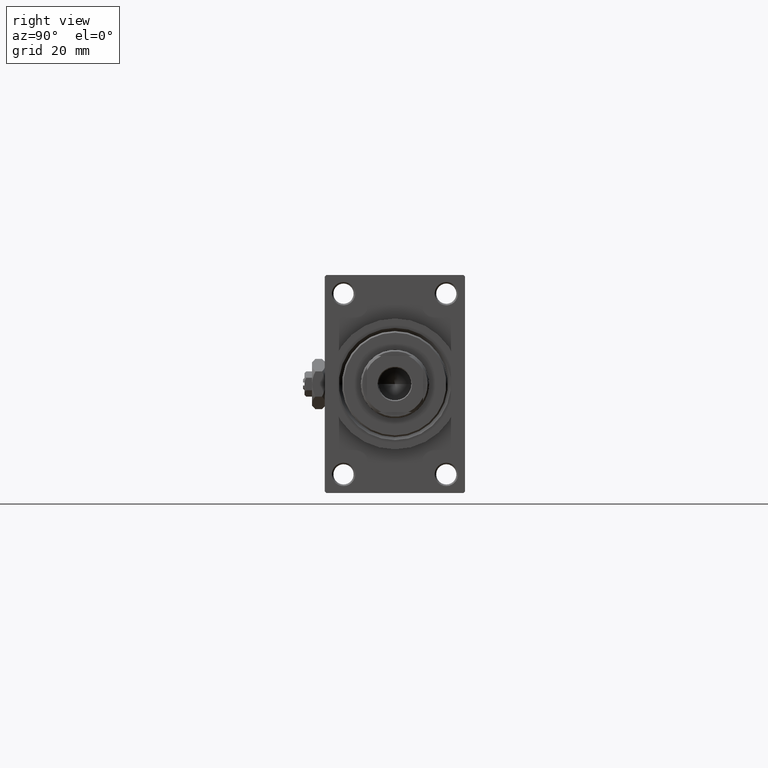
[diagram: clean part render]
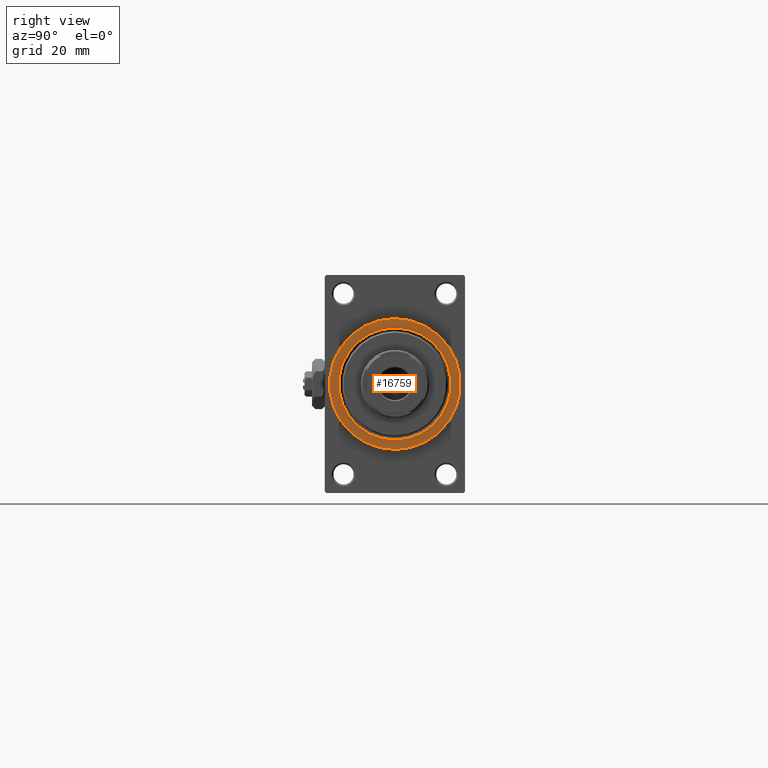
[diagram: same view with one face highlighted and labeled with its STEP entity id]
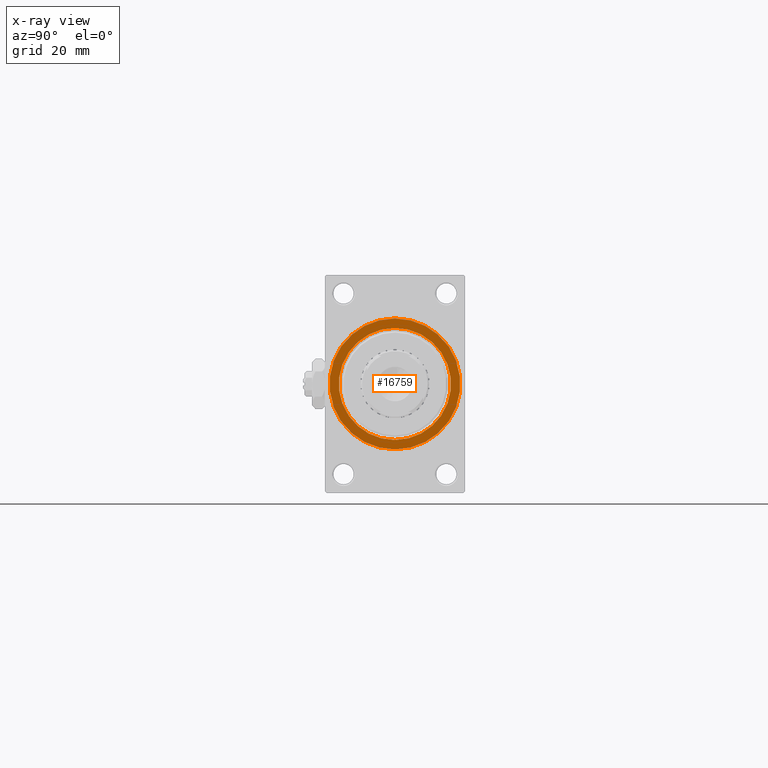
[diagram: x-ray of the same camera — body ghosted, the highlighted face saturated]
A machine part, right view. The second image highlights one B-rep face of the part: STEP entity #16759.
The next image is the same camera in x-ray: the body ghosted, the highlighted face saturated — about 0% of this face is hidden behind the body in this view.
In plain terms, the highlighted planar face has unit normal (1, 0, 0).
Its self-contained STEP definition (entity closure, byte-faithful):
#476 = DIRECTION ( 'NONE',  ( 1.000000000000000000, 0.000000000000000000, 0.000000000000000000 ) ) ;
#1683 = CIRCLE ( 'NONE', #34965, 21.00000000000000000 ) ;
#2450 = ORIENTED_EDGE ( 'NONE', *, *, #23136, .T. ) ;
#2705 = PLANE ( 'NONE',  #49121 ) ;
#3668 = EDGE_LOOP ( 'NONE', ( #2450, #24763 ) ) ;
#3820 = CARTESIAN_POINT ( 'NONE',  ( 183.0000000000000284, 0.000000000000000000, -18.00000000000007105 ) ) ;
#4643 = EDGE_LOOP ( 'NONE', ( #35079, #40848 ) ) ;
#4947 = CARTESIAN_POINT ( 'NONE',  ( 183.0000000000000284, 0.000000000000000000, 0.000000000000000000 ) ) ;
#5157 = VERTEX_POINT ( 'NONE', #3820 ) ;
#5343 = AXIS2_PLACEMENT_3D ( 'NONE', #11927, #476, #45943 ) ;
#9932 = CARTESIAN_POINT ( 'NONE',  ( 183.0000000000000284, 0.000000000000000000, 0.000000000000000000 ) ) ;
#10280 = EDGE_CURVE ( 'NONE', #37344, #5157, #40981, .T. ) ;
#11927 = CARTESIAN_POINT ( 'NONE',  ( 183.0000000000000284, 0.000000000000000000, 0.000000000000000000 ) ) ;
#12100 = EDGE_CURVE ( 'NONE', #33872, #17768, #13309, .T. ) ;
#13309 = CIRCLE ( 'NONE', #5343, 21.00000000000000000 ) ;
#16759 = ADVANCED_FACE ( 'NONE', ( #29260, #36483 ), #2705, .T. ) ;
#17768 = VERTEX_POINT ( 'NONE', #25236 ) ;
#19111 = AXIS2_PLACEMENT_3D ( 'NONE', #22154, #40789, #33566 ) ;
#19558 = CARTESIAN_POINT ( 'NONE',  ( 183.0000000000000284, 2.571758278209441661E-15, -21.00000000000000000 ) ) ;
#22070 = DIRECTION ( 'NONE',  ( 1.000000000000000000, 0.000000000000000000, 0.000000000000000000 ) ) ;
#22154 = CARTESIAN_POINT ( 'NONE',  ( 183.0000000000000284, 0.000000000000000000, 0.000000000000000000 ) ) ;
#22257 = CIRCLE ( 'NONE', #19111, 18.00000000000007105 ) ;
#23136 = EDGE_CURVE ( 'NONE', #17768, #33872, #1683, .T. ) ;
#24763 = ORIENTED_EDGE ( 'NONE', *, *, #12100, .T. ) ;
#25058 = DIRECTION ( 'NONE',  ( 0.000000000000000000, 0.000000000000000000, -1.000000000000000000 ) ) ;
#25066 = DIRECTION ( 'NONE',  ( 0.000000000000000000, 0.000000000000000000, -1.000000000000000000 ) ) ;
#25236 = CARTESIAN_POINT ( 'NONE',  ( 183.0000000000000284, 0.000000000000000000, 21.00000000000000000 ) ) ;
#25291 = DIRECTION ( 'NONE',  ( -1.000000000000000000, -0.000000000000000000, -0.000000000000000000 ) ) ;
#27339 = DIRECTION ( 'NONE',  ( 0.000000000000000000, 0.000000000000000000, -1.000000000000000000 ) ) ;
#29037 = CARTESIAN_POINT ( 'NONE',  ( 183.0000000000000284, 2.204364238465244894E-15, 18.00000000000007105 ) ) ;
#29260 = FACE_BOUND ( 'NONE', #4643, .T. ) ;
#31306 = CARTESIAN_POINT ( 'NONE',  ( 183.0000000000000284, 0.000000000000000000, 0.000000000000000000 ) ) ;
#31784 = DIRECTION ( 'NONE',  ( 1.000000000000000000, 0.000000000000000000, 0.000000000000000000 ) ) ;
#33025 = AXIS2_PLACEMENT_3D ( 'NONE', #4947, #25291, #25058 ) ;
#33566 = DIRECTION ( 'NONE',  ( 0.000000000000000000, 0.000000000000000000, -1.000000000000000000 ) ) ;
#33872 = VERTEX_POINT ( 'NONE', #19558 ) ;
#34965 = AXIS2_PLACEMENT_3D ( 'NONE', #31306, #31784, #27339 ) ;
#35079 = ORIENTED_EDGE ( 'NONE', *, *, #40276, .T. ) ;
#36483 = FACE_OUTER_BOUND ( 'NONE', #3668, .T. ) ;
#37344 = VERTEX_POINT ( 'NONE', #29037 ) ;
#40276 = EDGE_CURVE ( 'NONE', #5157, #37344, #22257, .T. ) ;
#40789 = DIRECTION ( 'NONE',  ( -1.000000000000000000, -0.000000000000000000, -0.000000000000000000 ) ) ;
#40848 = ORIENTED_EDGE ( 'NONE', *, *, #10280, .T. ) ;
#40981 = CIRCLE ( 'NONE', #33025, 18.00000000000007105 ) ;
#45943 = DIRECTION ( 'NONE',  ( 0.000000000000000000, 0.000000000000000000, -1.000000000000000000 ) ) ;
#49121 = AXIS2_PLACEMENT_3D ( 'NONE', #9932, #22070, #25066 ) ;